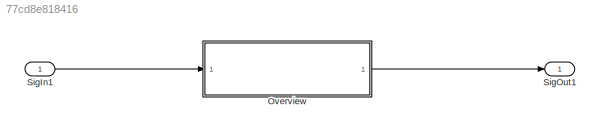
MODEL slx_77cd8e818416
KIND model
CONFIG AbsTol = auto
CONFIG EnableMultiTasking = off
CONFIG FixedStep = 0.001
CONFIG MaxStep = auto
CONFIG MinStep = auto
CONFIG RelTol = 1e-3
CONFIG SampleTimeConstraint = Unconstrained
CONFIG Solver = FixedStepDiscrete
CONFIG SolverName = FixedStepDiscrete
CONFIG StartTime = 0.0
CONFIG StopTime = Inf
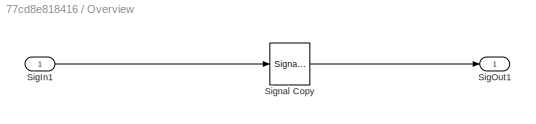
BLOCK [SubSystem] Overview
  Ports = [1, 1]
  RequestExecContextInheritance = off
BLOCK [Inport] Overview/SigIn1
  IconDisplay = Port number
BLOCK [Outport] Overview/SigOut1
  IconDisplay = Port number
BLOCK [SignalConversion] Overview/Signal Copy
  OverrideOpt = off
BLOCK [Inport] SigIn1
  IconDisplay = Port number
  OutDataTypeStr = uint8
BLOCK [Outport] SigOut1
  IconDisplay = Port number
LINE Overview/SigIn1:1 -> Overview/Signal Copy:1
LINE Overview/Signal Copy:1 -> Overview/SigOut1:1
LINE Overview:1 -> SigOut1:1
LINE SigIn1:1 -> Overview:1
